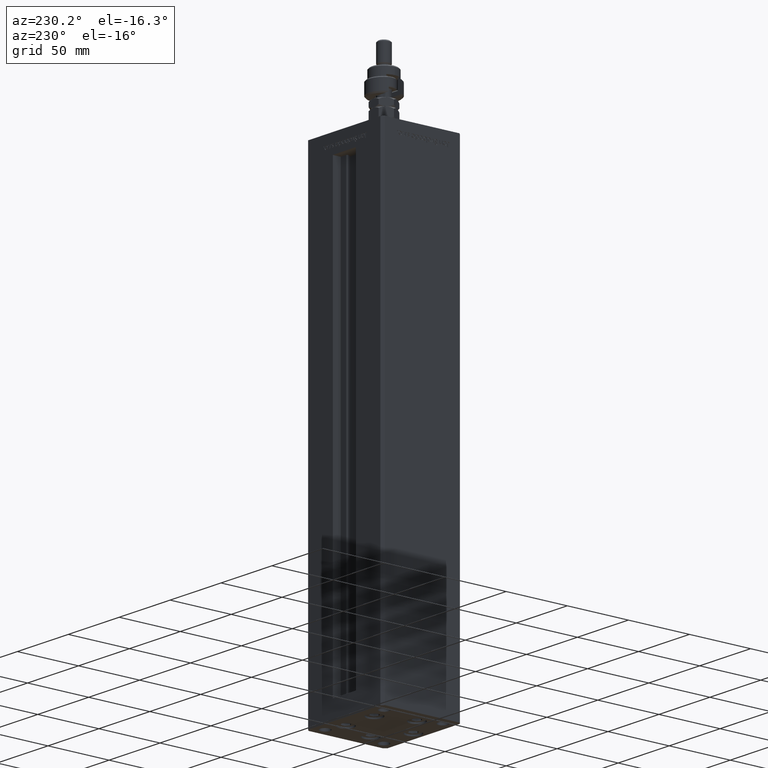
[diagram: clean part render]
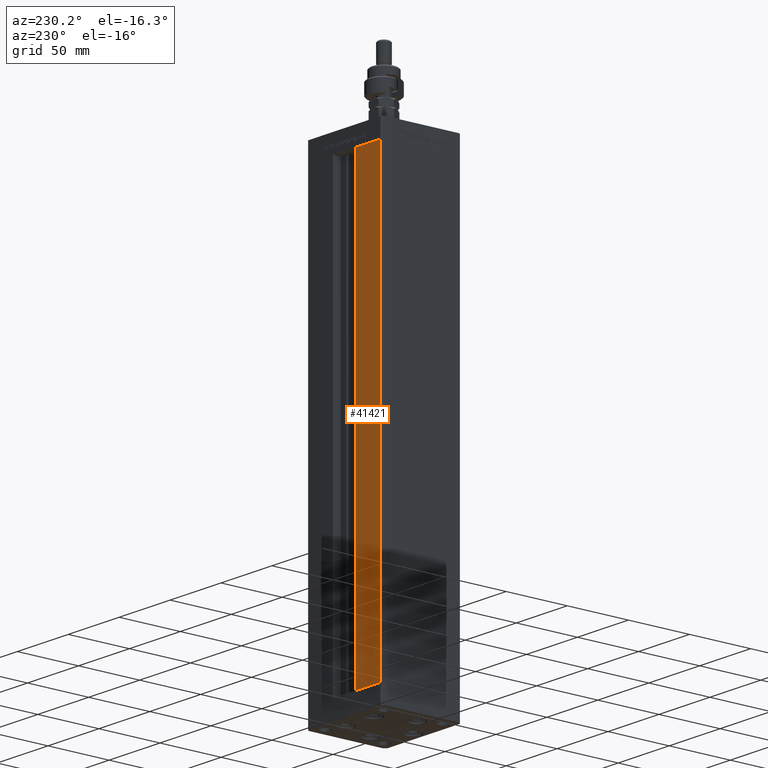
[diagram: same view with one face highlighted and labeled with its STEP entity id]
A machine part, auxiliary view. The second image highlights one B-rep face of the part: STEP entity #41421.
In plain terms, the highlighted planar face has unit normal (0, -1, 0).
Its self-contained STEP definition (entity closure, byte-faithful):
#821 = CARTESIAN_POINT ( 'NONE',  ( -35.50000000000000000, 32.49999999999999289, 0.000000000000000000 ) ) ;
#1346 = LINE ( 'NONE', #14055, #20244 ) ;
#3338 = CARTESIAN_POINT ( 'NONE',  ( -11.25000000000000178, 32.49999999999999289, 356.0000000000000000 ) ) ;
#7204 = DIRECTION ( 'NONE',  ( -1.000000000000000000, 0.000000000000000000, 0.000000000000000000 ) ) ;
#7348 = VECTOR ( 'NONE', #40260, 1000.000000000000000 ) ;
#10881 = CARTESIAN_POINT ( 'NONE',  ( -11.25000000000000178, 32.49999999999999289, 356.0000000000000000 ) ) ;
#13330 = CARTESIAN_POINT ( 'NONE',  ( -11.25000000000000178, 32.49999999999999289, 0.000000000000000000 ) ) ;
#13696 = VERTEX_POINT ( 'NONE', #821 ) ;
#14055 = CARTESIAN_POINT ( 'NONE',  ( -11.25000000000000178, 32.49999999999999289, 0.000000000000000000 ) ) ;
#14319 = LINE ( 'NONE', #48006, #7348 ) ;
#15220 = DIRECTION ( 'NONE',  ( 1.000000000000000000, 0.000000000000000000, 0.000000000000000000 ) ) ;
#17369 = DIRECTION ( 'NONE',  ( -0.000000000000000000, -0.000000000000000000, 1.000000000000000000 ) ) ;
#17415 = EDGE_LOOP ( 'NONE', ( #48738, #21206, #46294, #44340 ) ) ;
#19521 = VECTOR ( 'NONE', #15220, 1000.000000000000000 ) ;
#20244 = VECTOR ( 'NONE', #17369, 1000.000000000000000 ) ;
#21206 = ORIENTED_EDGE ( 'NONE', *, *, #26133, .F. ) ;
#21517 = DIRECTION ( 'NONE',  ( 0.000000000000000000, -0.000000000000000000, -1.000000000000000000 ) ) ;
#24300 = VERTEX_POINT ( 'NONE', #33490 ) ;
#26133 = EDGE_CURVE ( 'NONE', #44375, #45670, #1346, .T. ) ;
#30084 = PLANE ( 'NONE',  #31407 ) ;
#30356 = CARTESIAN_POINT ( 'NONE',  ( -11.25000000000000178, 32.49999999999999289, 356.0000000000000000 ) ) ;
#31407 = AXIS2_PLACEMENT_3D ( 'NONE', #30356, #47467, #21517 ) ;
#32608 = EDGE_CURVE ( 'NONE', #44375, #13696, #32614, .T. ) ;
#32614 = LINE ( 'NONE', #40343, #53061 ) ;
#32618 = EDGE_CURVE ( 'NONE', #24300, #45670, #53589, .T. ) ;
#33490 = CARTESIAN_POINT ( 'NONE',  ( -35.50000000000000000, 32.49999999999999289, 356.0000000000000000 ) ) ;
#33594 = EDGE_CURVE ( 'NONE', #24300, #13696, #14319, .T. ) ;
#40260 = DIRECTION ( 'NONE',  ( -0.000000000000000000, -0.000000000000000000, -1.000000000000000000 ) ) ;
#40343 = CARTESIAN_POINT ( 'NONE',  ( -11.25000000000000178, 32.49999999999999289, 0.000000000000000000 ) ) ;
#41421 = ADVANCED_FACE ( 'NONE', ( #46915 ), #30084, .F. ) ;
#44340 = ORIENTED_EDGE ( 'NONE', *, *, #33594, .F. ) ;
#44375 = VERTEX_POINT ( 'NONE', #13330 ) ;
#45670 = VERTEX_POINT ( 'NONE', #10881 ) ;
#46294 = ORIENTED_EDGE ( 'NONE', *, *, #32608, .T. ) ;
#46915 = FACE_OUTER_BOUND ( 'NONE', #17415, .T. ) ;
#47467 = DIRECTION ( 'NONE',  ( 0.000000000000000000, -1.000000000000000000, 0.000000000000000000 ) ) ;
#48006 = CARTESIAN_POINT ( 'NONE',  ( -35.50000000000000000, 32.49999999999999289, 356.0000000000000000 ) ) ;
#48738 = ORIENTED_EDGE ( 'NONE', *, *, #32618, .T. ) ;
#53061 = VECTOR ( 'NONE', #7204, 1000.000000000000000 ) ;
#53589 = LINE ( 'NONE', #3338, #19521 ) ;